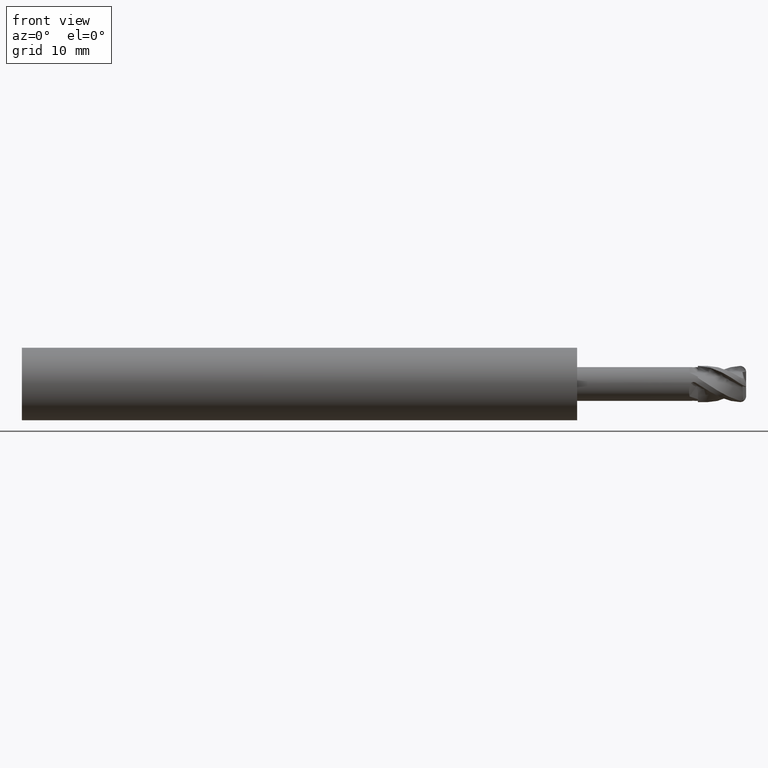
[diagram: clean part render]
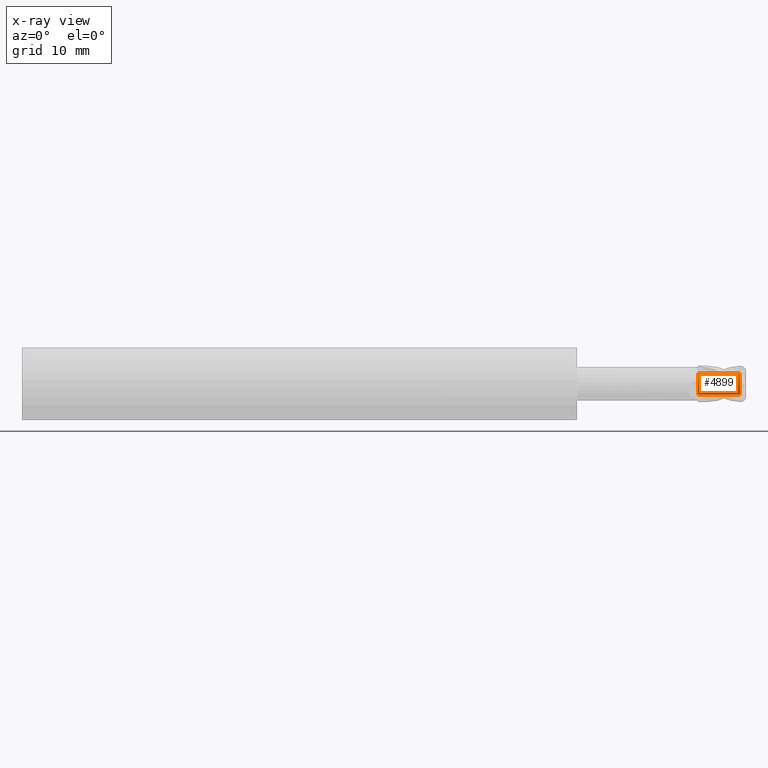
[diagram: x-ray — body ghosted, one internal face saturated and labeled with its STEP entity id]
A machine part, front view, then the same camera in x-ray: the body is ghosted and one INTERNAL B-rep face — a face not visible from any outside direction — is saturated and labeled: STEP entity #4899.
In plain terms, the highlighted cylindrical surface (edge-blend (fillet) strip) has radius 0.9 mm, axis along (-1, -0, -0).
Its self-contained STEP definition (entity closure, byte-faithful):
#729 = DIRECTION ( 'NONE',  ( 0.0000000000000000000, 0.0000000000000000000, 1.000000000000000000 ) ) ;
#734 = DIRECTION ( 'NONE',  ( -1.000000000000000000, -0.0000000000000000000, -0.0000000000000000000 ) ) ;
#740 = CARTESIAN_POINT ( 'NONE',  ( -39.76065438357068200, 0.0000000000000000000, 0.0000000000000000000 ) ) ;
#752 = CARTESIAN_POINT ( 'NONE',  ( 20.00000000000000400, 1.102182119232632700E-016, -0.9000000000000114600 ) ) ;
#757 = CARTESIAN_POINT ( 'NONE',  ( 23.49912731322093200, 1.102182119232635800E-016, -0.9000000000000146800 ) ) ;
#771 = CARTESIAN_POINT ( 'NONE',  ( 23.49912731322093200, 0.0000000000000000000, 0.9000000000000146800 ) ) ;
#789 = CARTESIAN_POINT ( 'NONE',  ( 20.00000000000000400, 0.0000000000000000000, 0.9000000000000114600 ) ) ;
#1941 = VECTOR ( 'NONE', #2928, 1000.000000000000000 ) ;
#1995 = LINE ( 'NONE', #3147, #2046 ) ;
#2003 = LINE ( 'NONE', #2927, #1941 ) ;
#2024 = CIRCLE ( 'NONE', #4813, 0.9000000000000114600 ) ;
#2027 = FACE_OUTER_BOUND ( 'NONE', #4475, .T. ) ;
#2046 = VECTOR ( 'NONE', #3148, 1000.000000000000000 ) ;
#2068 = CIRCLE ( 'NONE', #4808, 0.9000000000000146800 ) ;
#2085 = CYLINDRICAL_SURFACE ( 'NONE', #4780, 0.9000000000000131200 ) ;
#2927 = CARTESIAN_POINT ( 'NONE',  ( -39.76065438357068200, 1.102182119232633900E-016, -0.9000000000000131200 ) ) ;
#2928 = DIRECTION ( 'NONE',  ( -1.000000000000000000, -0.0000000000000000000, -0.0000000000000000000 ) ) ;
#3098 = CARTESIAN_POINT ( 'NONE',  ( 20.00000000000000400, 0.0000000000000000000, 0.0000000000000000000 ) ) ;
#3113 = DIRECTION ( 'NONE',  ( -1.000000000000000000, -0.0000000000000000000, -0.0000000000000000000 ) ) ;
#3114 = DIRECTION ( 'NONE',  ( 0.0000000000000000000, 0.0000000000000000000, 1.000000000000000000 ) ) ;
#3133 = CARTESIAN_POINT ( 'NONE',  ( 23.49912731322093200, 0.0000000000000000000, 0.0000000000000000000 ) ) ;
#3139 = DIRECTION ( 'NONE',  ( -1.000000000000000000, -0.0000000000000000000, -0.0000000000000000000 ) ) ;
#3140 = DIRECTION ( 'NONE',  ( 0.0000000000000000000, 0.0000000000000000000, 1.000000000000000000 ) ) ;
#3147 = CARTESIAN_POINT ( 'NONE',  ( -39.76065438357068200, 0.0000000000000000000, 0.9000000000000131200 ) ) ;
#3148 = DIRECTION ( 'NONE',  ( -1.000000000000000000, -0.0000000000000000000, -0.0000000000000000000 ) ) ;
#4434 = ORIENTED_EDGE ( 'NONE', *, *, #4763, .T. ) ;
#4475 = EDGE_LOOP ( 'NONE', ( #4508, #4569, #4434, #4596 ) ) ;
#4508 = ORIENTED_EDGE ( 'NONE', *, *, #4769, .F. ) ;
#4569 = ORIENTED_EDGE ( 'NONE', *, *, #4717, .T. ) ;
#4596 = ORIENTED_EDGE ( 'NONE', *, *, #4775, .F. ) ;
#4717 = EDGE_CURVE ( 'NONE', #4912, #4955, #2003, .T. ) ;
#4763 = EDGE_CURVE ( 'NONE', #4955, #4966, #2024, .T. ) ;
#4769 = EDGE_CURVE ( 'NONE', #4912, #4934, #2068, .T. ) ;
#4775 = EDGE_CURVE ( 'NONE', #4934, #4966, #1995, .T. ) ;
#4780 = AXIS2_PLACEMENT_3D ( 'NONE', #740, #734, #729 ) ;
#4808 = AXIS2_PLACEMENT_3D ( 'NONE', #3133, #3139, #3140 ) ;
#4813 = AXIS2_PLACEMENT_3D ( 'NONE', #3098, #3113, #3114 ) ;
#4899 = ADVANCED_FACE ( 'NONE', ( #2027 ), #2085, .F. ) ;
#4912 = VERTEX_POINT ( 'NONE', #757 ) ;
#4934 = VERTEX_POINT ( 'NONE', #771 ) ;
#4955 = VERTEX_POINT ( 'NONE', #752 ) ;
#4966 = VERTEX_POINT ( 'NONE', #789 ) ;